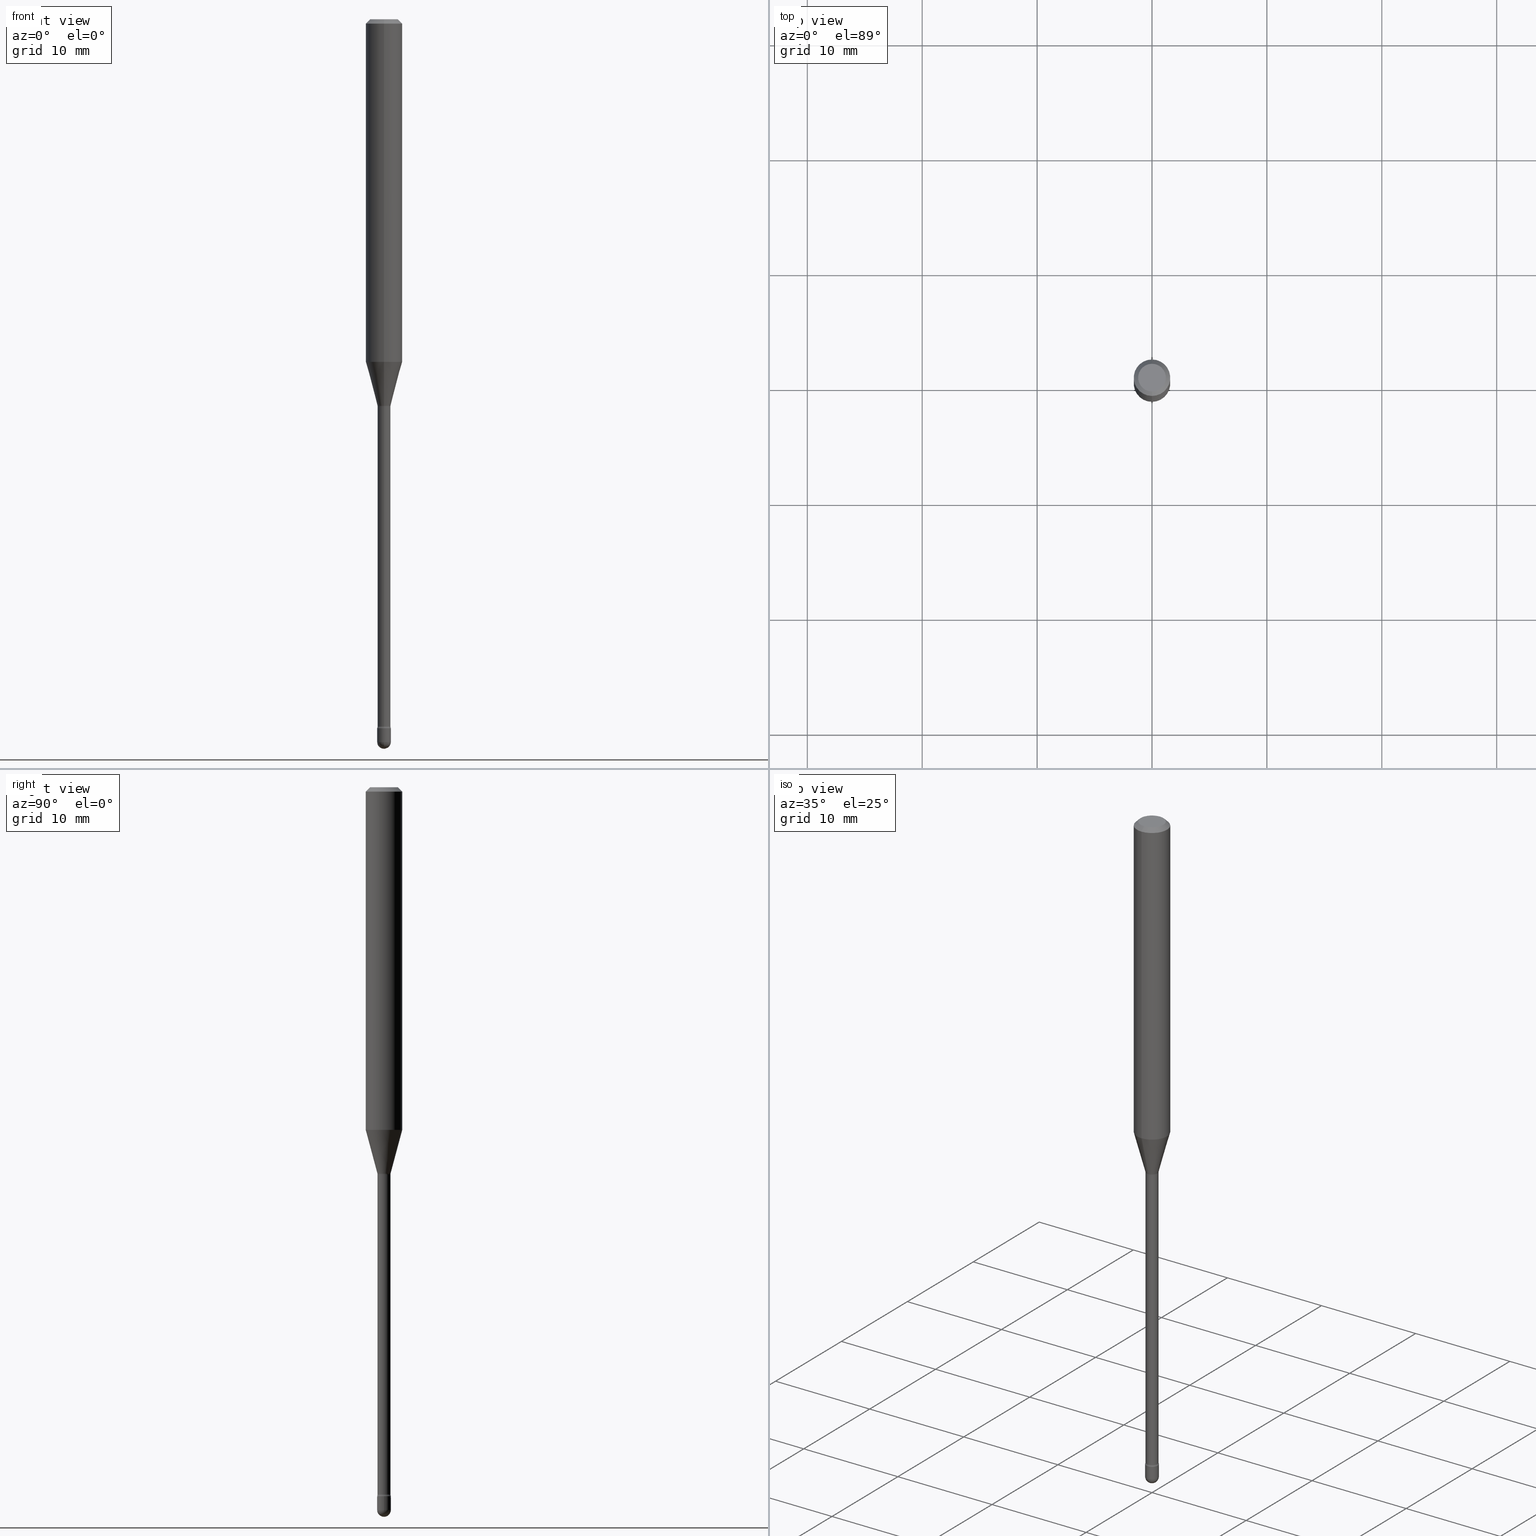
[diagram: canonical four-view strip — front | top / right | iso, engineering-drawing reading convention]
A machine part, canonical four-view strip (front | top / right | iso — engineering-drawing reading convention). The complete STEP part file that produces these views, byte-faithful:
ISO-10303-21;
HEADER;
FILE_DESCRIPTION (( 'STEP AP203' ),
    '1' );
FILE_NAME ('09472.STEP',
    '2024-04-09T23:34:16',
    ( '' ),
    ( '' ),
    'SwSTEP 2.0',
    'SolidWorks 2023',
    '' );
FILE_SCHEMA (( 'CONFIG_CONTROL_DESIGN' ));
ENDSEC;

DATA;
#1 = CARTESIAN_POINT ( 'NONE',  ( 6.056203498517491033E-29, -8.646653535645050331E-15, -2.476500000000000146 ) ) ;
#2 = EDGE_CURVE ( 'NONE', #5, #361, #333, .T. ) ;
#3 = VERTEX_POINT ( 'NONE', #110 ) ;
#4 = CARTESIAN_POINT ( 'NONE',  ( 6.056203498517491033E-29, -8.646653535645050331E-15, -2.476500000000000146 ) ) ;
#5 = VERTEX_POINT ( 'NONE', #68 ) ;
#6 = DIRECTION ( 'NONE',  ( 1.000000000000000000, 0.000000000000000000, 0.000000000000000000 ) ) ;
#7 = DIRECTION ( 'NONE',  ( -1.000000000000000000, 6.982962677686265922E-15, -4.883557194083111780E-29 ) ) ;
#8 = ORIENTED_EDGE ( 'NONE', *, *, #336, .F. ) ;
#9 = AXIS2_PLACEMENT_3D ( 'NONE', #422, #416, #329 ) ;
#10 = PERSON_AND_ORGANIZATION ( #436, #474 ) ;
#11 = AXIS2_PLACEMENT_3D ( 'NONE', #403, #64, #12 ) ;
#12 = DIRECTION ( 'NONE',  ( 1.000000000000000000, -6.982962677686265922E-15, 4.876176775795935793E-29 ) ) ;
#13 = ORIENTED_EDGE ( 'NONE', *, *, #323, .T. ) ;
#14 = EDGE_LOOP ( 'NONE', ( #414, #293, #231, #38 ) ) ;
#15 = ORIENTED_EDGE ( 'NONE', *, *, #135, .T. ) ;
#16 = CIRCLE ( 'NONE', #309, 0.06250000000000000000 ) ;
#17 = AXIS2_PLACEMENT_3D ( 'NONE', #114, #296, #523 ) ;
#18 = ORIENTED_EDGE ( 'NONE', *, *, #275, .T. ) ;
#19 = ADVANCED_FACE ( 'NONE', ( #510 ), #71, .T. ) ;
#20 = DIRECTION ( 'NONE',  ( -2.445456806742390166E-29, 3.491498522728124281E-15, 1.000000000000000000 ) ) ;
#21 = PRODUCT_DEFINITION_SHAPE ( 'NONE', 'NONE',  #35 ) ;
#22 = ORIENTED_EDGE ( 'NONE', *, *, #317, .F. ) ;
#23 = CARTESIAN_POINT ( 'NONE',  ( 1.570299446029823742E-16, 0.02210000000000003628, 4.009112815389543820E-16 ) ) ;
#24 = VERTEX_POINT ( 'NONE', #162 ) ;
#25 = DIRECTION ( 'NONE',  ( 2.445456806742389886E-29, -3.491498522728124281E-15, -1.000000000000000000 ) ) ;
#26 = AXIS2_PLACEMENT_3D ( 'NONE', #441, #148, #313 ) ;
#27 = DIRECTION ( 'NONE',  ( -2.445456806742390166E-29, 3.491498522728124281E-15, 1.000000000000000000 ) ) ;
#28 = CARTESIAN_POINT ( 'NONE',  ( -4.364351673553912750E-16, -0.06250000000000005551, -0.01499999999999986587 ) ) ;
#29 = DIRECTION ( 'NONE',  ( 6.982962677686265922E-15, 1.000000000000000000, 0.000000000000000000 ) ) ;
#30 = DIRECTION ( 'NONE',  ( -2.445456806742390166E-29, 3.491498522728124281E-15, 1.000000000000000000 ) ) ;
#31 = EDGE_CURVE ( 'NONE', #302, #5, #291, .T. ) ;
#32 =( CONVERSION_BASED_UNIT ( 'INCH', #468 ) LENGTH_UNIT ( ) NAMED_UNIT ( #346 ) );
#33 = VERTEX_POINT ( 'NONE', #195 ) ;
#34 = CIRCLE ( 'NONE', #566, 0.02349999999999995148 ) ;
#35 = PRODUCT_DEFINITION ( 'UNKNOWN', '', #133, #250 ) ;
#36 = CARTESIAN_POINT ( 'NONE',  ( 6.114676835852627231E-29, -8.727264387118866723E-15, -2.500000000000000000 ) ) ;
#37 = DIRECTION ( 'NONE',  ( -6.982962677686266711E-15, -1.000000000000000000, 3.491498522728124676E-15 ) ) ;
#38 = ORIENTED_EDGE ( 'NONE', *, *, #99, .F. ) ;
#39 = ORIENTED_EDGE ( 'NONE', *, *, #409, .F. ) ;
#40 =( NAMED_UNIT ( * ) SI_UNIT ( $, .STERADIAN. ) SOLID_ANGLE_UNIT ( ) );
#41 = EDGE_CURVE ( 'NONE', #56, #192, #289, .T. ) ;
#42 = CARTESIAN_POINT ( 'NONE',  ( -1.169113584055446105E-44, 1.669184350826100908E-30, 4.780733988912460139E-16 ) ) ;
#43 = ORIENTED_EDGE ( 'NONE', *, *, #492, .T. ) ;
#44 = CALENDAR_DATE ( 2024, 9, 4 ) ;
#45 = CARTESIAN_POINT ( 'NONE',  ( 3.235565564445505174E-29, -4.619575515422923355E-15, -1.323092501787273223 ) ) ;
#46 = COORDINATED_UNIVERSAL_TIME_OFFSET ( 5, 0, .BEHIND. ) ;
#47 = LINE ( 'NONE', #224, #483 ) ;
#48 = PERSON_AND_ORGANIZATION_ROLE ( 'design_owner' ) ;
#49 = DIRECTION ( 'NONE',  ( -2.445456806742390166E-29, 3.491498522728124281E-15, 1.000000000000000000 ) ) ;
#50 = VERTEX_POINT ( 'NONE', #242 ) ;
#51 = CC_DESIGN_DATE_AND_TIME_ASSIGNMENT ( #315, #488, ( #454 ) ) ;
#52 = AXIS2_PLACEMENT_3D ( 'NONE', #267, #560, #435 ) ;
#53 = CC_DESIGN_APPROVAL ( #186, ( #133 ) ) ;
#54 = APPLICATION_CONTEXT ( 'configuration controlled 3d designs of mechanical parts and assemblies' ) ;
#55 = ORIENTED_EDGE ( 'NONE', *, *, #317, .T. ) ;
#56 = VERTEX_POINT ( 'NONE', #559 ) ;
#57 = APPROVAL ( #89, 'UNSPECIFIED' ) ;
#58 = EDGE_LOOP ( 'NONE', ( #453, #404, #182, #131 ) ) ;
#59 = CARTESIAN_POINT ( 'NONE',  ( 3.668185210113605428E-31, -5.237247784092215166E-17, -0.01500000000000008271 ) ) ;
#60 = CONICAL_SURFACE ( 'NONE', #292, 0.06250000000000000000, 0.7853981633974483900 ) ;
#61 = EDGE_LOOP ( 'NONE', ( #491, #396, #233, #324 ) ) ;
#62 = LINE ( 'NONE', #92, #320 ) ;
#63 = DIRECTION ( 'NONE',  ( -2.445456806742390166E-29, 3.491498522728124281E-15, 1.000000000000000000 ) ) ;
#64 = DIRECTION ( 'NONE',  ( -2.445468806185136597E-29, 3.491481338843145583E-15, 1.000000000000000000 ) ) ;
#65 = CARTESIAN_POINT ( 'NONE',  ( 6.056203498517491033E-29, -8.646653535645050331E-15, -2.476500000000000146 ) ) ;
#66 = LINE ( 'NONE', #288, #246 ) ;
#67 = AXIS2_PLACEMENT_3D ( 'NONE', #506, #25, #196 ) ;
#68 = CARTESIAN_POINT ( 'NONE',  ( 4.440892098500910152E-16, 0.06249999999999587830, -1.174225147374218237 ) ) ;
#69 = CARTESIAN_POINT ( 'NONE',  ( 2.636113549670295689E-16, 0.03709999999999536585, -1.326974787463811145 ) ) ;
#70 = ADVANCED_FACE ( 'NONE', ( #341 ), #519, .T. ) ;
#71 = CYLINDRICAL_SURFACE ( 'NONE', #150, 0.02210000000000003628 ) ;
#72 = DIRECTION ( 'NONE',  ( -6.982962677686266711E-15, -1.000000000000000000, 3.491498522728124676E-15 ) ) ;
#73 = EDGE_CURVE ( 'NONE', #56, #504, #362, .T. ) ;
#74 = DIRECTION ( 'NONE',  ( -2.445456806742389886E-29, 3.491498522728124281E-15, 1.000000000000000000 ) ) ;
#75 = DIRECTION ( 'NONE',  ( 7.105427357601001859E-15, 1.000000000000000000, 0.000000000000000000 ) ) ;
#76 = VECTOR ( 'NONE', #393, 39.37007874015748143 ) ;
#77 = AXIS2_PLACEMENT_3D ( 'NONE', #69, #259, #248 ) ;
#78 = CARTESIAN_POINT ( 'NONE',  ( 3.245075449336902148E-29, -4.633107707545245986E-15, -1.326974787463811145 ) ) ;
#79 = CARTESIAN_POINT ( 'NONE',  ( 4.364351673553919652E-16, 0.06249999999999995143, -0.01500000000000030129 ) ) ;
#80 = VERTEX_POINT ( 'NONE', #247 ) ;
#81 = ADVANCED_FACE ( 'NONE', ( #240 ), #502, .T. ) ;
#82 = FACE_OUTER_BOUND ( 'NONE', #325, .T. ) ;
#83 = DIRECTION ( 'NONE',  ( -6.982962677686265922E-15, -1.000000000000000000, 3.491498522728124281E-15 ) ) ;
#84 = ORIENTED_EDGE ( 'NONE', *, *, #457, .F. ) ;
#85 = CARTESIAN_POINT ( 'NONE',  ( -1.543234751768340203E-16, -0.02210000000000463330, -1.326974787463811145 ) ) ;
#86 = AXIS2_PLACEMENT_3D ( 'NONE', #65, #158, #29 ) ;
#87 = CIRCLE ( 'NONE', #152, 0.06250000000000000000 ) ;
#88 = APPROVAL_PERSON_ORGANIZATION ( #351, #57, #533 ) ;
#89 = APPROVAL_STATUS ( 'not_yet_approved' ) ;
#90 = DIRECTION ( 'NONE',  ( -2.445456806742389886E-29, 3.491498522728124281E-15, 1.000000000000000000 ) ) ;
#91 = PERSON_AND_ORGANIZATION_ROLE ( 'creator' ) ;
#92 = CARTESIAN_POINT ( 'NONE',  ( -1.578925554262807327E-16, -0.02261111260566860820, -1.323092501787273223 ) ) ;
#93 = ADVANCED_FACE ( 'NONE', ( #507 ), #459, .T. ) ;
#94 = FACE_OUTER_BOUND ( 'NONE', #147, .T. ) ;
#95 = ORIENTED_EDGE ( 'NONE', *, *, #386, .F. ) ;
#96 = CALENDAR_DATE ( 2024, 9, 4 ) ;
#97 = AXIS2_PLACEMENT_3D ( 'NONE', #418, #27, #199 ) ;
#98 = ORIENTED_EDGE ( 'NONE', *, *, #534, .T. ) ;
#99 = EDGE_CURVE ( 'NONE', #361, #364, #512, .T. ) ;
#100 = MANIFOLD_SOLID_BREP ( 'Body-Move/Copy2[2]', #352 ) ;
#101 = ORIENTED_EDGE ( 'NONE', *, *, #153, .F. ) ;
#102 = ORIENTED_EDGE ( 'NONE', *, *, #434, .F. ) ;
#103 = FACE_OUTER_BOUND ( 'NONE', #106, .T. ) ;
#104 = AXIS2_PLACEMENT_3D ( 'NONE', #535, #413, #532 ) ;
#105 = CC_DESIGN_APPROVAL ( #57, ( #35 ) ) ;
#106 = EDGE_LOOP ( 'NONE', ( #282, #43 ) ) ;
#107 = DIRECTION ( 'NONE',  ( -2.438088387897960049E-29, 3.491481338843145188E-15, 1.000000000000000000 ) ) ;
#108 = EDGE_CURVE ( 'NONE', #222, #318, #514, .T. ) ;
#109 = DIRECTION ( 'NONE',  ( 6.982962677686265922E-15, 1.000000000000000000, -3.483106191921935554E-15 ) ) ;
#110 = CARTESIAN_POINT ( 'NONE',  ( -1.669775429035627771E-16, -0.02350000000000862510, -2.476500000000000590 ) ) ;
#111 = CARTESIAN_POINT ( 'NONE',  ( 2.871516879294367278E-29, -4.099805367407296517E-15, -1.174225147374218015 ) ) ;
#112 = AXIS2_PLACEMENT_3D ( 'NONE', #428, #342, #170 ) ;
#113 = CARTESIAN_POINT ( 'NONE',  ( -1.169113584055446105E-44, 1.669184350826100908E-30, 4.780733988912460139E-16 ) ) ;
#114 = CARTESIAN_POINT ( 'NONE',  ( 5.924569496155794395E-29, -8.458715066898005273E-15, -2.422672283192177645 ) ) ;
#115 = EDGE_CURVE ( 'NONE', #33, #541, #363, .T. ) ;
#116 = EDGE_LOOP ( 'NONE', ( #210, #55, #263, #205 ) ) ;
#117 = DIRECTION ( 'NONE',  ( -6.982962677686265922E-15, -1.000000000000000000, 3.491498522728124281E-15 ) ) ;
#118 = FACE_OUTER_BOUND ( 'NONE', #408, .T. ) ;
#119 = DIRECTION ( 'NONE',  ( 1.000000000000000000, -6.982962677686269866E-15, 0.000000000000000000 ) ) ;
#120 = LINE ( 'NONE', #79, #380 ) ;
#121 = CIRCLE ( 'NONE', #171, 0.01499999999999999424 ) ;
#122 = ORIENTED_EDGE ( 'NONE', *, *, #466, .T. ) ;
#123 = DIRECTION ( 'NONE',  ( -6.982962677686265922E-15, -1.000000000000000000, 0.000000000000000000 ) ) ;
#124 = SPHERICAL_SURFACE ( 'NONE', #179, 0.02349999999999995148 ) ;
#125 = ADVANCED_FACE ( 'NONE', ( #467 ), #124, .T. ) ;
#126 = ORIENTED_EDGE ( 'NONE', *, *, #429, .T. ) ;
#127 = PERSON_AND_ORGANIZATION ( #436, #474 ) ;
#128 = CARTESIAN_POINT ( 'NONE',  ( 5.924540425438438156E-29, -8.458756697819860632E-15, -2.422672283192177645 ) ) ;
#129 = EDGE_CURVE ( 'NONE', #50, #364, #308, .T. ) ;
#130 = CARTESIAN_POINT ( 'NONE',  ( 1.669775429036828812E-16, 0.02349999999999151726, -2.429000000000000270 ) ) ;
#131 = ORIENTED_EDGE ( 'NONE', *, *, #41, .F. ) ;
#132 = CIRCLE ( 'NONE', #52, 0.01500000000000001853 ) ;
#133 = PRODUCT_DEFINITION_FORMATION_WITH_SPECIFIED_SOURCE ( 'ANY', '', #201, .NOT_KNOWN. ) ;
#134 = PERSON_AND_ORGANIZATION ( #436, #474 ) ;
#135 = EDGE_CURVE ( 'NONE', #365, #361, #120, .T. ) ;
#136 = CARTESIAN_POINT ( 'NONE',  ( -2.590679153421016779E-16, -0.03710000000000852199, -2.422672283192177645 ) ) ;
#137 = PERSON_AND_ORGANIZATION_ROLE ( 'classification_officer' ) ;
#138 = CARTESIAN_POINT ( 'NONE',  ( -1.578925554262807327E-16, -0.02261111260566860820, -1.323092501787273223 ) ) ;
#139 = ORIENTED_EDGE ( 'NONE', *, *, #258, .F. ) ;
#140 = APPROVAL_STATUS ( 'not_yet_approved' ) ;
#141 = ORIENTED_EDGE ( 'NONE', *, *, #511, .F. ) ;
#142 = EDGE_CURVE ( 'NONE', #399, #192, #132, .T. ) ;
#143 = AXIS2_PLACEMENT_3D ( 'NONE', #113, #154, #375 ) ;
#144 = CIRCLE ( 'NONE', #463, 0.02350000000000000352 ) ;
#145 = CIRCLE ( 'NONE', #372, 0.02350000000000000352 ) ;
#146 = ORIENTED_EDGE ( 'NONE', *, *, #476, .T. ) ;
#147 = EDGE_LOOP ( 'NONE', ( #446, #232, #185, #545 ) ) ;
#148 = DIRECTION ( 'NONE',  ( -2.445468806185136597E-29, 3.491481338843145583E-15, 1.000000000000000000 ) ) ;
#149 = ORIENTED_EDGE ( 'NONE', *, *, #202, .F. ) ;
#150 = AXIS2_PLACEMENT_3D ( 'NONE', #383, #63, #425 ) ;
#151 = DIRECTION ( 'NONE',  ( -1.000000000000000000, 6.982962677686265922E-15, -4.883557194083112340E-29 ) ) ;
#152 = AXIS2_PLACEMENT_3D ( 'NONE', #213, #528, #220 ) ;
#153 = EDGE_CURVE ( 'NONE', #222, #33, #385, .T. ) ;
#154 = DIRECTION ( 'NONE',  ( -2.445456806742390166E-29, 3.491498522728124281E-15, 1.000000000000000000 ) ) ;
#155 = CARTESIAN_POINT ( 'NONE',  ( 0.000000000000000000, 0.000000000000000000, 0.000000000000000000 ) ) ;
#156 = ORIENTED_EDGE ( 'NONE', *, *, #73, .F. ) ;
#157 = DIRECTION ( 'NONE',  ( -2.445456806742390166E-29, 3.491498522728124281E-15, 1.000000000000000000 ) ) ;
#158 = DIRECTION ( 'NONE',  ( -1.000000000000000000, 6.982962677686265922E-15, -4.883557194083111780E-29 ) ) ;
#159 = DIRECTION ( 'NONE',  ( -6.982962677686265922E-15, -1.000000000000000000, 0.000000000000000000 ) ) ;
#160 = CIRCLE ( 'NONE', #530, 0.02261111260566398690 ) ;
#161 = TOROIDAL_SURFACE ( 'NONE', #427, 0.03710000000000000103, 0.01500000000000001853 ) ;
#162 = CARTESIAN_POINT ( 'NONE',  ( -0.02350000000000000699, -8.396753310943903641E-15, -2.476500000000000590 ) ) ;
#163 = ORIENTED_EDGE ( 'NONE', *, *, #434, .T. ) ;
#164 = ADVANCED_FACE ( 'NONE', ( #118 ), #208, .T. ) ;
#165 = DIRECTION ( 'NONE',  ( -6.982962677686265922E-15, -1.000000000000000000, 0.000000000000000000 ) ) ;
#166 = ORIENTED_EDGE ( 'NONE', *, *, #258, .T. ) ;
#167 = CARTESIAN_POINT ( 'NONE',  ( 3.245075449336902148E-29, -4.633107707545245986E-15, -1.326974787463811145 ) ) ;
#168 = VECTOR ( 'NONE', #74, 39.37007874015748143 ) ;
#169 = EDGE_CURVE ( 'NONE', #5, #50, #371, .T. ) ;
#170 = DIRECTION ( 'NONE',  ( -6.982962677686265922E-15, -1.000000000000000000, 4.370956789862821150E-15 ) ) ;
#171 = AXIS2_PLACEMENT_3D ( 'NONE', #298, #350, #75 ) ;
#172 = ORIENTED_EDGE ( 'NONE', *, *, #480, .F. ) ;
#173 = DIRECTION ( 'NONE',  ( -4.851104656540964275E-15, -0.7071067811865500152, -0.7071067811865450192 ) ) ;
#174 = EDGE_CURVE ( 'NONE', #504, #225, #121, .T. ) ;
#175 = DIRECTION ( 'NONE',  ( -2.445456806742389886E-29, 3.491498522728124281E-15, 1.000000000000000000 ) ) ;
#176 = MECHANICAL_CONTEXT ( 'NONE', #508, 'mechanical' ) ;
#177 = DIRECTION ( 'NONE',  ( -6.982962677686265922E-15, -1.000000000000000000, 0.000000000000000000 ) ) ;
#178 = ORIENTED_EDGE ( 'NONE', *, *, #99, .T. ) ;
#179 = AXIS2_PLACEMENT_3D ( 'NONE', #4, #7, #479 ) ;
#180 = APPROVAL_ROLE ( '' ) ;
#181 = FACE_OUTER_BOUND ( 'NONE', #349, .T. ) ;
#182 = ORIENTED_EDGE ( 'NONE', *, *, #466, .F. ) ;
#183 = PERSON_AND_ORGANIZATION_ROLE ( 'design_supplier' ) ;
#184 = EDGE_CURVE ( 'NONE', #364, #361, #87, .T. ) ;
#185 = ORIENTED_EDGE ( 'NONE', *, *, #440, .T. ) ;
#186 = APPROVAL ( #276, 'UNSPECIFIED' ) ;
#187 = ORIENTED_EDGE ( 'NONE', *, *, #480, .T. ) ;
#188 = AXIS2_PLACEMENT_3D ( 'NONE', #458, #107, #191 ) ;
#189 = ORIENTED_EDGE ( 'NONE', *, *, #323, .F. ) ;
#190 = ADVANCED_FACE ( 'NONE', ( #301 ), #300, .F. ) ;
#191 = DIRECTION ( 'NONE',  ( 1.000000000000000000, -6.982962677686265922E-15, 4.876176775795935793E-29 ) ) ;
#192 = VERTEX_POINT ( 'NONE', #85 ) ;
#193 = CC_DESIGN_PERSON_AND_ORGANIZATION_ASSIGNMENT ( #405, #215, ( #133 ) ) ;
#194 = DIRECTION ( 'NONE',  ( -6.982962677686265133E-15, -1.000000000000000000, 0.000000000000000000 ) ) ;
#195 = CARTESIAN_POINT ( 'NONE',  ( 0.02350000000000000352, -8.644907794975628038E-15, -2.429000000000000270 ) ) ;
#196 = DIRECTION ( 'NONE',  ( 6.982962677686265922E-15, 1.000000000000000000, -3.491498522728124281E-15 ) ) ;
#197 = AXIS2_PLACEMENT_3D ( 'NONE', #354, #525, #37 ) ;
#198 = CIRCLE ( 'NONE', #338, 0.02210000000000000159 ) ;
#199 = DIRECTION ( 'NONE',  ( -6.982962677686265922E-15, -1.000000000000000000, 3.483106191921935554E-15 ) ) ;
#200 = FACE_OUTER_BOUND ( 'NONE', #411, .T. ) ;
#201 = PRODUCT ( '09472', '09472', '', ( #176 ) ) ;
#202 = EDGE_CURVE ( 'NONE', #399, #302, #547, .T. ) ;
#203 = DIRECTION ( 'NONE',  ( -2.445468806185136597E-29, 3.491481338843145583E-15, 1.000000000000000000 ) ) ;
#204 = CARTESIAN_POINT ( 'NONE',  ( 3.245059526378913467E-29, -4.633130510127363484E-15, -1.326974787463811145 ) ) ;
#205 = ORIENTED_EDGE ( 'NONE', *, *, #452, .F. ) ;
#206 = CC_DESIGN_PERSON_AND_ORGANIZATION_ASSIGNMENT ( #10, #137, ( #454 ) ) ;
#207 = DIRECTION ( 'NONE',  ( -6.982962677686265922E-15, -1.000000000000000000, 4.370956789862821150E-15 ) ) ;
#208 = CONICAL_SURFACE ( 'NONE', #419, 0.02261111260566398690, 0.2617993877991501295 ) ;
#209 = TOROIDAL_SURFACE ( 'NONE', #17, 0.03710000000000006348, 0.01499999999999999424 ) ;
#210 = ORIENTED_EDGE ( 'NONE', *, *, #407, .F. ) ;
#211 = DIRECTION ( 'NONE',  ( -2.445456806742390166E-29, 3.491498522728124281E-15, 1.000000000000000000 ) ) ;
#212 = DIRECTION ( 'NONE',  ( 4.937700262164548042E-15, 0.7071067811865451302, -0.7071067811865499042 ) ) ;
#213 = CARTESIAN_POINT ( 'NONE',  ( 3.668185210113605428E-31, -5.237247784092215166E-17, -0.01500000000000008271 ) ) ;
#214 = ORIENTED_EDGE ( 'NONE', *, *, #174, .F. ) ;
#215 = PERSON_AND_ORGANIZATION_ROLE ( 'creator' ) ;
#216 = CIRCLE ( 'NONE', #539, 0.02210000000000000159 ) ;
#217 = DIRECTION ( 'NONE',  ( -6.982962677686265922E-15, -1.000000000000000000, 3.491498522728124676E-15 ) ) ;
#218 = EDGE_LOOP ( 'NONE', ( #22, #487, #13, #102 ) ) ;
#219 = APPLICATION_PROTOCOL_DEFINITION ( 'international standard', 'config_control_design', 1994, #54 ) ;
#220 = DIRECTION ( 'NONE',  ( -6.982962677686265922E-15, -1.000000000000000000, 3.483106191921935554E-15 ) ) ;
#221 = EDGE_CURVE ( 'NONE', #469, #318, #556, .T. ) ;
#222 = VERTEX_POINT ( 'NONE', #471 ) ;
#223 = APPROVAL_DATE_TIME ( #537, #186 ) ;
#224 = CARTESIAN_POINT ( 'NONE',  ( -4.287811248607203282E-16, -0.06250000000000005551, -0.01499999999999986587 ) ) ;
#225 = VERTEX_POINT ( 'NONE', #130 ) ;
#226 = PERSON_AND_ORGANIZATION ( #436, #474 ) ;
#227 = CARTESIAN_POINT ( 'NONE',  ( 5.940014583577266287E-29, -8.480849911706614347E-15, -2.429000000000000270 ) ) ;
#228 = EDGE_LOOP ( 'NONE', ( #139, #172, #15, #178 ) ) ;
#229 = CIRCLE ( 'NONE', #104, 0.02350000000000000699 ) ;
#230 = AXIS2_PLACEMENT_3D ( 'NONE', #478, #384, #562 ) ;
#231 = ORIENTED_EDGE ( 'NONE', *, *, #129, .T. ) ;
#232 = ORIENTED_EDGE ( 'NONE', *, *, #253, .T. ) ;
#233 = ORIENTED_EDGE ( 'NONE', *, *, #108, .F. ) ;
#234 = AXIS2_PLACEMENT_3D ( 'NONE', #42, #526, #217 ) ;
#235 = TOROIDAL_SURFACE ( 'NONE', #464, 0.03710000000000000103, 0.01500000000000001853 ) ;
#236 = CARTESIAN_POINT ( 'NONE',  ( 1.640996229256876491E-16, 0.02349999999999132991, -2.476500000000000590 ) ) ;
#237 = ORIENTED_EDGE ( 'NONE', *, *, #184, .F. ) ;
#238 = ADVANCED_FACE ( 'NONE', ( #486 ), #304, .F. ) ;
#239 = DIRECTION ( 'NONE',  ( -6.982962677686265922E-15, -1.000000000000000000, 0.000000000000000000 ) ) ;
#240 = FACE_OUTER_BOUND ( 'NONE', #228, .T. ) ;
#241 = CARTESIAN_POINT ( 'NONE',  ( 1.570299446030416867E-16, 0.02209999999999536988, -1.326974787463811145 ) ) ;
#242 = CARTESIAN_POINT ( 'NONE',  ( -4.364351673553631225E-16, -0.06250000000000412170, -1.174225147374217793 ) ) ;
#243 = VECTOR ( 'NONE', #555, 39.37007874015748143 ) ;
#244 = VECTOR ( 'NONE', #175, 39.37007874015748143 ) ;
#245 = CYLINDRICAL_SURFACE ( 'NONE', #11, 0.02350000000000000352 ) ;
#246 = VECTOR ( 'NONE', #328, 39.37007874015748143 ) ;
#247 = CARTESIAN_POINT ( 'NONE',  ( -1.640996229255678655E-16, -0.02350000000000847938, -2.429000000000000270 ) ) ;
#248 = DIRECTION ( 'NONE',  ( 7.105427357601001859E-15, 1.000000000000000000, 0.000000000000000000 ) ) ;
#249 = DIRECTION ( 'NONE',  ( 1.000000000000000000, -6.982962677686227268E-15, 0.000000000000000000 ) ) ;
#250 = DESIGN_CONTEXT ( 'detailed design', #54, 'design' ) ;
#251 = DIRECTION ( 'NONE',  ( -2.445468806185136597E-29, 3.491481338843145583E-15, 1.000000000000000000 ) ) ;
#252 = CARTESIAN_POINT ( 'NONE',  ( -1.543234751768667333E-16, -0.02210000000000003628, 5.552355162435376952E-16 ) ) ;
#253 = EDGE_CURVE ( 'NONE', #302, #399, #160, .T. ) ;
#254 =( NAMED_UNIT ( * ) PLANE_ANGLE_UNIT ( ) SI_UNIT ( $, .RADIAN. ) );
#255 = AXIS2_PLACEMENT_3D ( 'NONE', #417, #421, #326 ) ;
#256 = CC_DESIGN_SECURITY_CLASSIFICATION ( #454, ( #133 ) ) ;
#257 = DIRECTION ( 'NONE',  ( -2.445456806742390166E-29, 3.491498522728124281E-15, 1.000000000000000000 ) ) ;
#258 = EDGE_CURVE ( 'NONE', #456, #364, #47, .T. ) ;
#259 = DIRECTION ( 'NONE',  ( 1.000000000000000000, -7.105427357601001070E-15, 4.926315718983979931E-29 ) ) ;
#260 = CARTESIAN_POINT ( 'NONE',  ( 5.924569496155794395E-29, -8.458715066898005273E-15, -2.422672283192177645 ) ) ;
#261 = EDGE_LOOP ( 'NONE', ( #39, #498, #126, #370, #314 ) ) ;
#262 = FACE_OUTER_BOUND ( 'NONE', #477, .T. ) ;
#263 = ORIENTED_EDGE ( 'NONE', *, *, #41, .T. ) ;
#264 = DATE_AND_TIME ( #493, #540 ) ;
#265 = APPROVAL ( #140, 'UNSPECIFIED' ) ;
#266 = VECTOR ( 'NONE', #290, 39.37007874015748143 ) ;
#267 = CARTESIAN_POINT ( 'NONE',  ( -2.590679153421280061E-16, -0.03710000000000462927, -1.326974787463811145 ) ) ;
#268 = AXIS2_PLACEMENT_3D ( 'NONE', #299, #520, #72 ) ;
#269 = ORIENTED_EDGE ( 'NONE', *, *, #452, .T. ) ;
#270 = DATE_TIME_ROLE ( 'creation_date' ) ;
#271 = CARTESIAN_POINT ( 'NONE',  ( 3.235565564445505174E-29, -4.619575515422923355E-15, -1.323092501787273223 ) ) ;
#272 = SHAPE_DEFINITION_REPRESENTATION ( #21, #334 ) ;
#273 = FACE_OUTER_BOUND ( 'NONE', #538, .T. ) ;
#274 = ORIENTED_EDGE ( 'NONE', *, *, #511, .T. ) ;
#275 = EDGE_CURVE ( 'NONE', #456, #365, #285, .T. ) ;
#276 = APPROVAL_STATUS ( 'not_yet_approved' ) ;
#277 = DIRECTION ( 'NONE',  ( -2.445456806742390166E-29, 3.491498522728124281E-15, 1.000000000000000000 ) ) ;
#278 = ORIENTED_EDGE ( 'NONE', *, *, #142, .F. ) ;
#279 = CIRCLE ( 'NONE', #26, 0.02350000000000000699 ) ;
#280 = CC_DESIGN_PERSON_AND_ORGANIZATION_ASSIGNMENT ( #134, #91, ( #35 ) ) ;
#281 = COORDINATED_UNIVERSAL_TIME_OFFSET ( 5, 0, .BEHIND. ) ;
#282 = ORIENTED_EDGE ( 'NONE', *, *, #115, .T. ) ;
#283 = ORIENTED_EDGE ( 'NONE', *, *, #457, .T. ) ;
#284 = ORIENTED_EDGE ( 'NONE', *, *, #2, .T. ) ;
#285 = CIRCLE ( 'NONE', #197, 0.04749999999999999362 ) ;
#286 = LINE ( 'NONE', #23, #266 ) ;
#287 = DIRECTION ( 'NONE',  ( -6.982962677686265133E-15, -1.000000000000000000, 0.000000000000000000 ) ) ;
#288 = CARTESIAN_POINT ( 'NONE',  ( -0.02350000000000000352, 1.669775429036235687E-16, -1.155949746209903035E-30 ) ) ;
#289 = LINE ( 'NONE', #252, #243 ) ;
#290 = DIRECTION ( 'NONE',  ( -2.445456806742389886E-29, 3.491498522728124281E-15, 1.000000000000000000 ) ) ;
#291 = LINE ( 'NONE', #548, #494 ) ;
#292 = AXIS2_PLACEMENT_3D ( 'NONE', #59, #460, #109 ) ;
#293 = ORIENTED_EDGE ( 'NONE', *, *, #169, .T. ) ;
#294 = DIRECTION ( 'NONE',  ( -2.445456806742390166E-29, 3.491498522728124281E-15, 1.000000000000000000 ) ) ;
#295 = DIRECTION ( 'NONE',  ( 1.839019923739599526E-15, 0.2588190451025248473, 0.9659258262890673130 ) ) ;
#296 = DIRECTION ( 'NONE',  ( -2.445456806742390166E-29, 3.491498522728124281E-15, 1.000000000000000000 ) ) ;
#297 = ADVANCED_FACE ( 'NONE', ( #262 ), #433, .T. ) ;
#298 = CARTESIAN_POINT ( 'NONE',  ( 2.636113549670568339E-16, 0.03709999999999160497, -2.422672283192177645 ) ) ;
#299 = CARTESIAN_POINT ( 'NONE',  ( 2.023465601364097511E-45, -2.889165055145571576E-31, -8.274621583700891195E-17 ) ) ;
#300 = TOROIDAL_SURFACE ( 'NONE', #444, 0.03710000000000006348, 0.01499999999999999424 ) ;
#301 = FACE_OUTER_BOUND ( 'NONE', #218, .T. ) ;
#302 = VERTEX_POINT ( 'NONE', #348 ) ;
#303 = FACE_OUTER_BOUND ( 'NONE', #14, .T. ) ;
#304 = PLANE ( 'NONE',  #343 ) ;
#305 = DIRECTION ( 'NONE',  ( 6.982962677686265922E-15, 1.000000000000000000, 0.000000000000000000 ) ) ;
#306 = CC_DESIGN_PERSON_AND_ORGANIZATION_ASSIGNMENT ( #226, #183, ( #133 ) ) ;
#307 = CIRCLE ( 'NONE', #255, 0.02350000000000000699 ) ;
#308 = LINE ( 'NONE', #521, #244 ) ;
#309 = AXIS2_PLACEMENT_3D ( 'NONE', #111, #211, #207 ) ;
#310 = ORIENTED_EDGE ( 'NONE', *, *, #108, .T. ) ;
#311 = MANIFOLD_SOLID_BREP ( 'Body-Move/Copy2[1]', #389 ) ;
#312 = CALENDAR_DATE ( 2024, 9, 4 ) ;
#313 = DIRECTION ( 'NONE',  ( 1.000000000000000000, -6.982962677686227268E-15, 0.000000000000000000 ) ) ;
#314 = ORIENTED_EDGE ( 'NONE', *, *, #492, .F. ) ;
#315 = DATE_AND_TIME ( #96, #531 ) ;
#316 = PLANE ( 'NONE',  #188 ) ;
#317 = EDGE_CURVE ( 'NONE', #504, #56, #503, .T. ) ;
#318 = VERTEX_POINT ( 'NONE', #236 ) ;
#319 = DIRECTION ( 'NONE',  ( 0.000000000000000000, 0.000000000000000000, 1.000000000000000000 ) ) ;
#320 = VECTOR ( 'NONE', #368, 39.37007874015749564 ) ;
#321 = EDGE_LOOP ( 'NONE', ( #388, #149, #437, #122 ) ) ;
#322 = LOCAL_TIME ( 19, 34, 16.00000000000000000, #565 ) ;
#323 = EDGE_CURVE ( 'NONE', #225, #80, #144, .T. ) ;
#324 = ORIENTED_EDGE ( 'NONE', *, *, #429, .F. ) ;
#325 = EDGE_LOOP ( 'NONE', ( #327, #98, #269, #278 ) ) ;
#326 = DIRECTION ( 'NONE',  ( 1.000000000000000000, -6.982962677686227268E-15, 0.000000000000000000 ) ) ;
#327 = ORIENTED_EDGE ( 'NONE', *, *, #253, .F. ) ;
#328 = DIRECTION ( 'NONE',  ( -2.445468806185136877E-29, 3.491481338843145188E-15, 1.000000000000000000 ) ) ;
#329 = DIRECTION ( 'NONE',  ( 6.982962677686265922E-15, 1.000000000000000000, -3.483106191921935554E-15 ) ) ;
#330 = DIRECTION ( 'NONE',  ( -6.982962677686265922E-15, -1.000000000000000000, 0.000000000000000000 ) ) ;
#331 = EDGE_LOOP ( 'NONE', ( #214, #156, #163, #274 ) ) ;
#332 = PRODUCT_RELATED_PRODUCT_CATEGORY ( 'detail', '', ( #201 ) ) ;
#333 = LINE ( 'NONE', #378, #168 ) ;
#334 = ADVANCED_BREP_SHAPE_REPRESENTATION ( '09472', ( #311, #100, #484 ), #420 ) ;
#335 = AXIS2_PLACEMENT_3D ( 'NONE', #1, #344, #305 ) ;
#336 = EDGE_CURVE ( 'NONE', #24, #3, #307, .T. ) ;
#337 = CARTESIAN_POINT ( 'NONE',  ( 6.056203498517491033E-29, -8.646653535645050331E-15, -2.476500000000000146 ) ) ;
#338 = AXIS2_PLACEMENT_3D ( 'NONE', #204, #430, #123 ) ;
#339 = ORIENTED_EDGE ( 'NONE', *, *, #275, .F. ) ;
#340 = CARTESIAN_POINT ( 'NONE',  ( 1.620037437533623579E-16, 0.02209999999999160900, -2.422672283192177645 ) ) ;
#341 = FACE_OUTER_BOUND ( 'NONE', #116, .T. ) ;
#342 = DIRECTION ( 'NONE',  ( -2.445456806742390166E-29, 3.491498522728124281E-15, 1.000000000000000000 ) ) ;
#343 = AXIS2_PLACEMENT_3D ( 'NONE', #395, #90, #83 ) ;
#344 = DIRECTION ( 'NONE',  ( 1.000000000000000000, -6.982962677686265922E-15, 4.883557194083112340E-29 ) ) ;
#345 = ADVANCED_FACE ( 'NONE', ( #415 ), #245, .T. ) ;
#346 = DIMENSIONAL_EXPONENTS ( 1.000000000000000000, 0.000000000000000000, 0.000000000000000000, 0.000000000000000000, 0.000000000000000000, 0.000000000000000000, 0.000000000000000000 ) ;
#347 = COORDINATED_UNIVERSAL_TIME_OFFSET ( 5, 0, .BEHIND. ) ;
#348 = CARTESIAN_POINT ( 'NONE',  ( 3.023754139721027843E-16, 0.02261111260565936906, -1.323092501787273223 ) ) ;
#349 = EDGE_LOOP ( 'NONE', ( #500, #561, #442, #101, #310 ) ) ;
#350 = DIRECTION ( 'NONE',  ( 1.000000000000000000, -7.105427357601001070E-15, 4.926315718983979931E-29 ) ) ;
#351 = PERSON_AND_ORGANIZATION ( #436, #474 ) ;
#352 = CLOSED_SHELL ( 'NONE', ( #558, #19, #190, #369, #297, #164, #374, #550, #81, #448, #238, #542, #70, #499 ) ) ;
#353 = AXIS2_PLACEMENT_3D ( 'NONE', #155, #490, #501 ) ;
#354 = CARTESIAN_POINT ( 'NONE',  ( 2.023465601364097511E-45, -2.889165055145571576E-31, -8.274621583700891195E-17 ) ) ;
#355 = CIRCLE ( 'NONE', #412, 0.02350000000000000352 ) ;
#356 = ORIENTED_EDGE ( 'NONE', *, *, #202, .T. ) ;
#357 = ADVANCED_FACE ( 'NONE', ( #181 ), #451, .T. ) ;
#358 = CARTESIAN_POINT ( 'NONE',  ( 3.840629472727447874E-16, 0.04749999999999999362, -2.485923956665947867E-16 ) ) ;
#359 = VERTEX_POINT ( 'NONE', #241 ) ;
#360 = COORDINATED_UNIVERSAL_TIME_OFFSET ( 5, 0, .BEHIND. ) ;
#361 = VERTEX_POINT ( 'NONE', #544 ) ;
#362 = CIRCLE ( 'NONE', #461, 0.02210000000000007098 ) ;
#363 = CIRCLE ( 'NONE', #391, 0.02350000000000000352 ) ;
#364 = VERTEX_POINT ( 'NONE', #28 ) ;
#365 = VERTEX_POINT ( 'NONE', #358 ) ;
#366 = DIRECTION ( 'NONE',  ( -6.982962677686265922E-15, -1.000000000000000000, 0.000000000000000000 ) ) ;
#367 = ORIENTED_EDGE ( 'NONE', *, *, #31, .T. ) ;
#368 = DIRECTION ( 'NONE',  ( -1.807323732225328562E-15, -0.2588190451025179639, 0.9659258262890689783 ) ) ;
#369 = ADVANCED_FACE ( 'NONE', ( #200 ), #60, .T. ) ;
#370 = ORIENTED_EDGE ( 'NONE', *, *, #153, .T. ) ;
#371 = CIRCLE ( 'NONE', #112, 0.06250000000000000000 ) ;
#372 = AXIS2_PLACEMENT_3D ( 'NONE', #377, #251, #119 ) ;
#373 = CARTESIAN_POINT ( 'NONE',  ( 3.245059526378913467E-29, -4.633130510127363484E-15, -1.326974787463811145 ) ) ;
#374 = ADVANCED_FACE ( 'NONE', ( #94 ), #402, .T. ) ;
#375 = DIRECTION ( 'NONE',  ( -6.982962677686265922E-15, -1.000000000000000000, 3.491498522728123492E-15 ) ) ;
#376 = CARTESIAN_POINT ( 'NONE',  ( 5.940043730223697314E-29, -8.480808172050001970E-15, -2.429000000000000270 ) ) ;
#377 = CARTESIAN_POINT ( 'NONE',  ( 5.940043730223697314E-29, -8.480808172050001970E-15, -2.429000000000000270 ) ) ;
#378 = CARTESIAN_POINT ( 'NONE',  ( 4.440892098500625669E-16, 0.06250000000000000000, 2.598547412207382957E-16 ) ) ;
#379 = CC_DESIGN_DATE_AND_TIME_ASSIGNMENT ( #447, #270, ( #35 ) ) ;
#380 = VECTOR ( 'NONE', #212, 39.37007874015748143 ) ;
#381 = DIRECTION ( 'NONE',  ( -1.000000000000000000, 7.105427357601001070E-15, -4.926315508542082329E-29 ) ) ;
#382 = LOCAL_TIME ( 19, 34, 16.00000000000000000, #281 ) ;
#383 = CARTESIAN_POINT ( 'NONE',  ( -1.169113584055446105E-44, 1.669184350826100908E-30, 4.780733988912460139E-16 ) ) ;
#384 = DIRECTION ( 'NONE',  ( -2.445456806742390166E-29, 3.491498522728124281E-15, 1.000000000000000000 ) ) ;
#385 = LINE ( 'NONE', #481, #76 ) ;
#386 = EDGE_CURVE ( 'NONE', #318, #24, #229, .T. ) ;
#387 = CARTESIAN_POINT ( 'NONE',  ( 3.235565564445505174E-29, -4.619575515422923355E-15, -1.323092501787273223 ) ) ;
#388 = ORIENTED_EDGE ( 'NONE', *, *, #534, .F. ) ;
#389 = CLOSED_SHELL ( 'NONE', ( #357, #125, #400, #93, #345 ) ) ;
#390 = PERSON_AND_ORGANIZATION ( #436, #474 ) ;
#391 = AXIS2_PLACEMENT_3D ( 'NONE', #376, #553, #513 ) ;
#392 = CC_DESIGN_APPROVAL ( #265, ( #454 ) ) ;
#393 = DIRECTION ( 'NONE',  ( -2.445468806185136877E-29, 3.491481338843145188E-15, 1.000000000000000000 ) ) ;
#394 = CALENDAR_DATE ( 2024, 9, 4 ) ;
#395 = CARTESIAN_POINT ( 'NONE',  ( 1.640996229256866630E-16, 0.02349999999999152073, -2.429000000000000270 ) ) ;
#396 = ORIENTED_EDGE ( 'NONE', *, *, #221, .T. ) ;
#397 = PERSON_AND_ORGANIZATION ( #436, #474 ) ;
#398 = DIRECTION ( 'NONE',  ( -2.445456806742390166E-29, 3.491498522728124281E-15, 1.000000000000000000 ) ) ;
#399 = VERTEX_POINT ( 'NONE', #138 ) ;
#400 = ADVANCED_FACE ( 'NONE', ( #103 ), #316, .T. ) ;
#401 = SECURITY_CLASSIFICATION_LEVEL ( 'unclassified' ) ;
#402 = CONICAL_SURFACE ( 'NONE', #472, 0.02261111260566398690, 0.2617993877991501295 ) ;
#403 = CARTESIAN_POINT ( 'NONE',  ( 0.000000000000000000, 0.000000000000000000, 0.000000000000000000 ) ) ;
#404 = ORIENTED_EDGE ( 'NONE', *, *, #407, .T. ) ;
#405 = PERSON_AND_ORGANIZATION ( #436, #474 ) ;
#406 = ORIENTED_EDGE ( 'NONE', *, *, #221, .F. ) ;
#407 = EDGE_CURVE ( 'NONE', #504, #359, #286, .T. ) ;
#408 = EDGE_LOOP ( 'NONE', ( #356, #367, #84, #536 ) ) ;
#409 = EDGE_CURVE ( 'NONE', #24, #541, #66, .T. ) ;
#410 = AXIS2_PLACEMENT_3D ( 'NONE', #387, #431, #563 ) ;
#411 = EDGE_LOOP ( 'NONE', ( #339, #166, #449, #517 ) ) ;
#412 = AXIS2_PLACEMENT_3D ( 'NONE', #518, #157, #159 ) ;
#413 = DIRECTION ( 'NONE',  ( -2.445468806185136597E-29, 3.491481338843145583E-15, 1.000000000000000000 ) ) ;
#414 = ORIENTED_EDGE ( 'NONE', *, *, #2, .F. ) ;
#415 = FACE_OUTER_BOUND ( 'NONE', #261, .T. ) ;
#416 = DIRECTION ( 'NONE',  ( 2.445456806742390166E-29, -3.491498522728124281E-15, -1.000000000000000000 ) ) ;
#417 = CARTESIAN_POINT ( 'NONE',  ( 6.056203498517492154E-29, -8.646653535645053486E-15, -2.476500000000000590 ) ) ;
#418 = CARTESIAN_POINT ( 'NONE',  ( 3.668185210113605428E-31, -5.237247784092215166E-17, -0.01500000000000008271 ) ) ;
#419 = AXIS2_PLACEMENT_3D ( 'NONE', #45, #398, #165 ) ;
#420 =( GEOMETRIC_REPRESENTATION_CONTEXT ( 3 ) GLOBAL_UNCERTAINTY_ASSIGNED_CONTEXT ( ( #505 ) ) GLOBAL_UNIT_ASSIGNED_CONTEXT ( ( #32, #254, #40 ) ) REPRESENTATION_CONTEXT ( 'NONE', 'WORKASPACE' ) );
#421 = DIRECTION ( 'NONE',  ( -2.445468806185136597E-29, 3.491481338843145583E-15, 1.000000000000000000 ) ) ;
#422 = CARTESIAN_POINT ( 'NONE',  ( 3.668185210113605428E-31, -5.237247784092215166E-17, -0.01500000000000008271 ) ) ;
#423 = CYLINDRICAL_SURFACE ( 'NONE', #230, 0.06250000000000000000 ) ;
#424 = CARTESIAN_POINT ( 'NONE',  ( -0.02350000000000000352, -8.396753310943903641E-15, -2.429000000000000270 ) ) ;
#425 = DIRECTION ( 'NONE',  ( -6.982962677686265922E-15, -1.000000000000000000, 3.491498522728123492E-15 ) ) ;
#426 = AXIS2_PLACEMENT_3D ( 'NONE', #551, #203, #249 ) ;
#427 = AXIS2_PLACEMENT_3D ( 'NONE', #167, #294, #117 ) ;
#428 = CARTESIAN_POINT ( 'NONE',  ( 2.871516879294367278E-29, -4.099805367407296517E-15, -1.174225147374218015 ) ) ;
#429 = EDGE_CURVE ( 'NONE', #3, #222, #279, .T. ) ;
#430 = DIRECTION ( 'NONE',  ( -2.445456806742390166E-29, 3.491498522728124281E-15, 1.000000000000000000 ) ) ;
#431 = DIRECTION ( 'NONE',  ( -2.445456806742390166E-29, 3.491498522728124281E-15, 1.000000000000000000 ) ) ;
#432 = DIRECTION ( 'NONE',  ( -7.105427357601001070E-15, -1.000000000000000000, 0.000000000000000000 ) ) ;
#433 = CYLINDRICAL_SURFACE ( 'NONE', #234, 0.06250000000000000000 ) ;
#434 = EDGE_CURVE ( 'NONE', #56, #80, #495, .T. ) ;
#435 = DIRECTION ( 'NONE',  ( -6.982962677686267499E-15, -1.000000000000000000, 0.000000000000000000 ) ) ;
#436 = PERSON ( 'UNSPECIFIED', 'UNSPECIFIED', 'UNSPECIFIED', ('UNSPECIFIED'), ('UNSPECIFIED'), ('UNSPECIFIED') ) ;
#437 = ORIENTED_EDGE ( 'NONE', *, *, #142, .T. ) ;
#438 = CARTESIAN_POINT ( 'NONE',  ( 0.000000000000000000, 0.000000000000000000, 0.000000000000000000 ) ) ;
#439 = DIRECTION ( 'NONE',  ( -2.445456806742390166E-29, 3.491498522728124281E-15, 1.000000000000000000 ) ) ;
#440 = EDGE_CURVE ( 'NONE', #399, #50, #62, .T. ) ;
#441 = CARTESIAN_POINT ( 'NONE',  ( 6.056203498517492154E-29, -8.646653535645053486E-15, -2.476500000000000590 ) ) ;
#442 = ORIENTED_EDGE ( 'NONE', *, *, #115, .F. ) ;
#443 = DATE_AND_TIME ( #44, #322 ) ;
#444 = AXIS2_PLACEMENT_3D ( 'NONE', #260, #257, #475 ) ;
#445 = LOCAL_TIME ( 19, 34, 16.00000000000000000, #347 ) ;
#446 = ORIENTED_EDGE ( 'NONE', *, *, #31, .F. ) ;
#447 = DATE_AND_TIME ( #312, #382 ) ;
#448 = ADVANCED_FACE ( 'NONE', ( #273 ), #546, .F. ) ;
#449 = ORIENTED_EDGE ( 'NONE', *, *, #184, .T. ) ;
#450 = EDGE_LOOP ( 'NONE', ( #141, #189 ) ) ;
#451 = CYLINDRICAL_SURFACE ( 'NONE', #353, 0.02350000000000000352 ) ;
#452 = EDGE_CURVE ( 'NONE', #359, #192, #216, .T. ) ;
#453 = ORIENTED_EDGE ( 'NONE', *, *, #73, .T. ) ;
#454 = SECURITY_CLASSIFICATION ( '', '', #401 ) ;
#455 = CARTESIAN_POINT ( 'NONE',  ( 3.235565564445505174E-29, -4.619575515422923355E-15, -1.323092501787273223 ) ) ;
#456 = VERTEX_POINT ( 'NONE', #509 ) ;
#457 = EDGE_CURVE ( 'NONE', #50, #5, #16, .T. ) ;
#458 = CARTESIAN_POINT ( 'NONE',  ( 5.940043730223697314E-29, -8.480808172050001970E-15, -2.429000000000000270 ) ) ;
#459 = SPHERICAL_SURFACE ( 'NONE', #86, 0.02349999999999995148 ) ;
#460 = DIRECTION ( 'NONE',  ( 2.445456806742390166E-29, -3.491498522728124281E-15, -1.000000000000000000 ) ) ;
#461 = AXIS2_PLACEMENT_3D ( 'NONE', #462, #30, #287 ) ;
#462 = CARTESIAN_POINT ( 'NONE',  ( 5.924540425438438156E-29, -8.458756697819860632E-15, -2.422672283192177645 ) ) ;
#463 = AXIS2_PLACEMENT_3D ( 'NONE', #227, #20, #239 ) ;
#464 = AXIS2_PLACEMENT_3D ( 'NONE', #78, #465, #554 ) ;
#465 = DIRECTION ( 'NONE',  ( -2.445456806742390166E-29, 3.491498522728124281E-15, 1.000000000000000000 ) ) ;
#466 = EDGE_CURVE ( 'NONE', #192, #359, #198, .T. ) ;
#467 = FACE_OUTER_BOUND ( 'NONE', #543, .T. ) ;
#468 = LENGTH_MEASURE_WITH_UNIT ( LENGTH_MEASURE( 0.02539999999999999897 ), #470 );
#469 = VERTEX_POINT ( 'NONE', #36 ) ;
#470 =( LENGTH_UNIT ( ) NAMED_UNIT ( * ) SI_UNIT ( $, .METRE. ) );
#471 = CARTESIAN_POINT ( 'NONE',  ( 0.02350000000000000699, -8.727830476773153796E-15, -2.476500000000000590 ) ) ;
#472 = AXIS2_PLACEMENT_3D ( 'NONE', #455, #277, #366 ) ;
#473 = FACE_OUTER_BOUND ( 'NONE', #321, .T. ) ;
#474 = ORGANIZATION ( 'UNSPECIFIED', 'UNSPECIFIED', '' ) ;
#475 = DIRECTION ( 'NONE',  ( -6.982962677686265922E-15, -1.000000000000000000, 3.491498522728124281E-15 ) ) ;
#476 = EDGE_CURVE ( 'NONE', #469, #3, #34, .T. ) ;
#477 = EDGE_LOOP ( 'NONE', ( #283, #284, #237, #497 ) ) ;
#478 = CARTESIAN_POINT ( 'NONE',  ( -1.169113584055446105E-44, 1.669184350826100908E-30, 4.780733988912460139E-16 ) ) ;
#479 = DIRECTION ( 'NONE',  ( 6.982962677686265922E-15, 1.000000000000000000, 0.000000000000000000 ) ) ;
#480 = EDGE_CURVE ( 'NONE', #365, #456, #515, .T. ) ;
#481 = CARTESIAN_POINT ( 'NONE',  ( 0.02350000000000000352, -1.640996229256272766E-16, 1.145901542312045115E-30 ) ) ;
#482 = APPROVAL_DATE_TIME ( #443, #265 ) ;
#483 = VECTOR ( 'NONE', #173, 39.37007874015748143 ) ;
#484 = AXIS2_PLACEMENT_3D ( 'NONE', #438, #319, #6 ) ;
#485 = CC_DESIGN_PERSON_AND_ORGANIZATION_ASSIGNMENT ( #127, #48, ( #201 ) ) ;
#486 = FACE_OUTER_BOUND ( 'NONE', #450, .T. ) ;
#487 = ORIENTED_EDGE ( 'NONE', *, *, #174, .T. ) ;
#488 = DATE_TIME_ROLE ( 'classification_date' ) ;
#489 = DIRECTION ( 'NONE',  ( -6.982962677686265133E-15, -1.000000000000000000, 0.000000000000000000 ) ) ;
#490 = DIRECTION ( 'NONE',  ( -2.445468806185136597E-29, 3.491481338843145583E-15, 1.000000000000000000 ) ) ;
#491 = ORIENTED_EDGE ( 'NONE', *, *, #476, .F. ) ;
#492 = EDGE_CURVE ( 'NONE', #541, #33, #145, .T. ) ;
#493 = CALENDAR_DATE ( 2024, 9, 4 ) ;
#494 = VECTOR ( 'NONE', #295, 39.37007874015747433 ) ;
#495 = CIRCLE ( 'NONE', #564, 0.01499999999999999424 ) ;
#496 = CIRCLE ( 'NONE', #77, 0.01500000000000001853 ) ;
#497 = ORIENTED_EDGE ( 'NONE', *, *, #129, .F. ) ;
#498 = ORIENTED_EDGE ( 'NONE', *, *, #336, .T. ) ;
#499 = ADVANCED_FACE ( 'NONE', ( #473 ), #235, .F. ) ;
#500 = ORIENTED_EDGE ( 'NONE', *, *, #386, .T. ) ;
#501 = DIRECTION ( 'NONE',  ( 1.000000000000000000, -6.982962677686265922E-15, 4.876176775795935793E-29 ) ) ;
#502 = CONICAL_SURFACE ( 'NONE', #9, 0.06250000000000000000, 0.7853981633974483900 ) ;
#503 = CIRCLE ( 'NONE', #522, 0.02210000000000007098 ) ;
#504 = VERTEX_POINT ( 'NONE', #340 ) ;
#505 = UNCERTAINTY_MEASURE_WITH_UNIT (LENGTH_MEASURE( 1.000000000000000082E-05 ), #32, 'distance_accuracy_value', 'NONE');
#506 = CARTESIAN_POINT ( 'NONE',  ( 3.316907271900976096E-16, 0.04749999999999999362, 3.181741169753270705E-17 ) ) ;
#507 = FACE_OUTER_BOUND ( 'NONE', #61, .T. ) ;
#508 = APPLICATION_CONTEXT ( 'configuration controlled 3d designs of mechanical parts and assemblies' ) ;
#509 = CARTESIAN_POINT ( 'NONE',  ( -3.773273898774340269E-16, -0.04749999999999999362, 8.309996399257698746E-17 ) ) ;
#510 = FACE_OUTER_BOUND ( 'NONE', #58, .T. ) ;
#511 = EDGE_CURVE ( 'NONE', #80, #225, #355, .T. ) ;
#512 = CIRCLE ( 'NONE', #97, 0.06250000000000000000 ) ;
#513 = DIRECTION ( 'NONE',  ( 1.000000000000000000, -6.982962677686269866E-15, 0.000000000000000000 ) ) ;
#514 = CIRCLE ( 'NONE', #426, 0.02350000000000000699 ) ;
#515 = CIRCLE ( 'NONE', #268, 0.04749999999999999362 ) ;
#516 = FACE_OUTER_BOUND ( 'NONE', #331, .T. ) ;
#517 = ORIENTED_EDGE ( 'NONE', *, *, #135, .F. ) ;
#518 = CARTESIAN_POINT ( 'NONE',  ( 5.940014583577266287E-29, -8.480849911706614347E-15, -2.429000000000000270 ) ) ;
#519 = CYLINDRICAL_SURFACE ( 'NONE', #143, 0.02210000000000003628 ) ;
#520 = DIRECTION ( 'NONE',  ( -2.445456806742390166E-29, 3.491498522728124281E-15, 1.000000000000000000 ) ) ;
#521 = CARTESIAN_POINT ( 'NONE',  ( -4.364351673553916201E-16, -0.06250000000000000000, 6.962920565617538308E-16 ) ) ;
#522 = AXIS2_PLACEMENT_3D ( 'NONE', #128, #49, #194 ) ;
#523 = DIRECTION ( 'NONE',  ( -6.982962677686265922E-15, -1.000000000000000000, 3.491498522728124281E-15 ) ) ;
#524 = APPROVAL_PERSON_ORGANIZATION ( #390, #265, #180 ) ;
#525 = DIRECTION ( 'NONE',  ( -2.445456806742390166E-29, 3.491498522728124281E-15, 1.000000000000000000 ) ) ;
#526 = DIRECTION ( 'NONE',  ( -2.445456806742390166E-29, 3.491498522728124281E-15, 1.000000000000000000 ) ) ;
#527 = APPROVAL_ROLE ( '' ) ;
#528 = DIRECTION ( 'NONE',  ( -2.445456806742390166E-29, 3.491498522728124281E-15, 1.000000000000000000 ) ) ;
#529 = APPROVAL_DATE_TIME ( #264, #57 ) ;
#530 = AXIS2_PLACEMENT_3D ( 'NONE', #271, #439, #177 ) ;
#531 = LOCAL_TIME ( 19, 34, 16.00000000000000000, #360 ) ;
#532 = DIRECTION ( 'NONE',  ( 1.000000000000000000, -6.982962677686227268E-15, 0.000000000000000000 ) ) ;
#533 = APPROVAL_ROLE ( '' ) ;
#534 = EDGE_CURVE ( 'NONE', #302, #359, #496, .T. ) ;
#535 = CARTESIAN_POINT ( 'NONE',  ( 6.056203498517492154E-29, -8.646653535645053486E-15, -2.476500000000000590 ) ) ;
#536 = ORIENTED_EDGE ( 'NONE', *, *, #440, .F. ) ;
#537 = DATE_AND_TIME ( #394, #445 ) ;
#538 = EDGE_LOOP ( 'NONE', ( #187, #18 ) ) ;
#539 = AXIS2_PLACEMENT_3D ( 'NONE', #373, #549, #330 ) ;
#540 = LOCAL_TIME ( 19, 34, 16.00000000000000000, #46 ) ;
#541 = VERTEX_POINT ( 'NONE', #424 ) ;
#542 = ADVANCED_FACE ( 'NONE', ( #516 ), #209, .F. ) ;
#543 = EDGE_LOOP ( 'NONE', ( #406, #146, #8, #95 ) ) ;
#544 = CARTESIAN_POINT ( 'NONE',  ( 4.440892098500914096E-16, 0.06249999999999995143, -0.01500000000000030129 ) ) ;
#545 = ORIENTED_EDGE ( 'NONE', *, *, #169, .F. ) ;
#546 = PLANE ( 'NONE',  #67 ) ;
#547 = CIRCLE ( 'NONE', #410, 0.02261111260566398690 ) ;
#548 = CARTESIAN_POINT ( 'NONE',  ( 1.606616180941141096E-16, 0.02261111260565936906, -1.323092501787273223 ) ) ;
#549 = DIRECTION ( 'NONE',  ( -2.445456806742390166E-29, 3.491498522728124281E-15, 1.000000000000000000 ) ) ;
#550 = ADVANCED_FACE ( 'NONE', ( #303 ), #423, .T. ) ;
#551 = CARTESIAN_POINT ( 'NONE',  ( 6.056203498517492154E-29, -8.646653535645053486E-15, -2.476500000000000590 ) ) ;
#552 = APPLICATION_PROTOCOL_DEFINITION ( 'international standard', 'config_control_design', 1994, #508 ) ;
#553 = DIRECTION ( 'NONE',  ( -2.445468806185136597E-29, 3.491481338843145583E-15, 1.000000000000000000 ) ) ;
#554 = DIRECTION ( 'NONE',  ( -6.982962677686265922E-15, -1.000000000000000000, 3.491498522728124281E-15 ) ) ;
#555 = DIRECTION ( 'NONE',  ( -2.445456806742389886E-29, 3.491498522728124281E-15, 1.000000000000000000 ) ) ;
#556 = CIRCLE ( 'NONE', #335, 0.02349999999999995148 ) ;
#557 = APPROVAL_PERSON_ORGANIZATION ( #397, #186, #527 ) ;
#558 = ADVANCED_FACE ( 'NONE', ( #82 ), #161, .F. ) ;
#559 = CARTESIAN_POINT ( 'NONE',  ( -1.543234751768077413E-16, -0.02210000000000852949, -2.422672283192177645 ) ) ;
#560 = DIRECTION ( 'NONE',  ( -1.000000000000000000, 6.982962677686265922E-15, -4.883557194083112340E-29 ) ) ;
#561 = ORIENTED_EDGE ( 'NONE', *, *, #409, .T. ) ;
#562 = DIRECTION ( 'NONE',  ( -6.982962677686265922E-15, -1.000000000000000000, 3.491498522728124676E-15 ) ) ;
#563 = DIRECTION ( 'NONE',  ( -6.982962677686265922E-15, -1.000000000000000000, 0.000000000000000000 ) ) ;
#564 = AXIS2_PLACEMENT_3D ( 'NONE', #136, #151, #489 ) ;
#565 = COORDINATED_UNIVERSAL_TIME_OFFSET ( 5, 0, .BEHIND. ) ;
#566 = AXIS2_PLACEMENT_3D ( 'NONE', #337, #381, #432 ) ;
ENDSEC;
END-ISO-10303-21;
